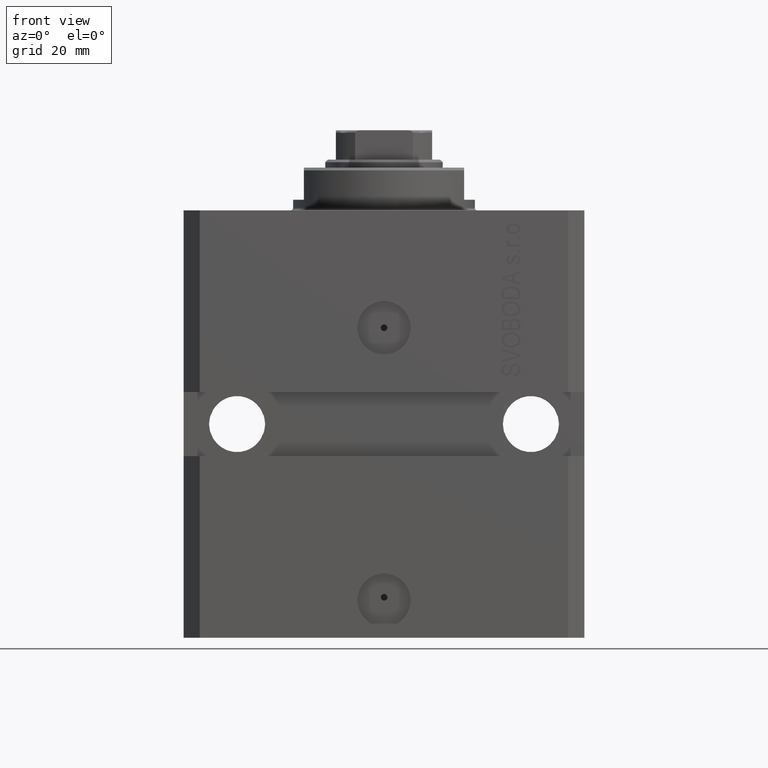
[diagram: clean part render]
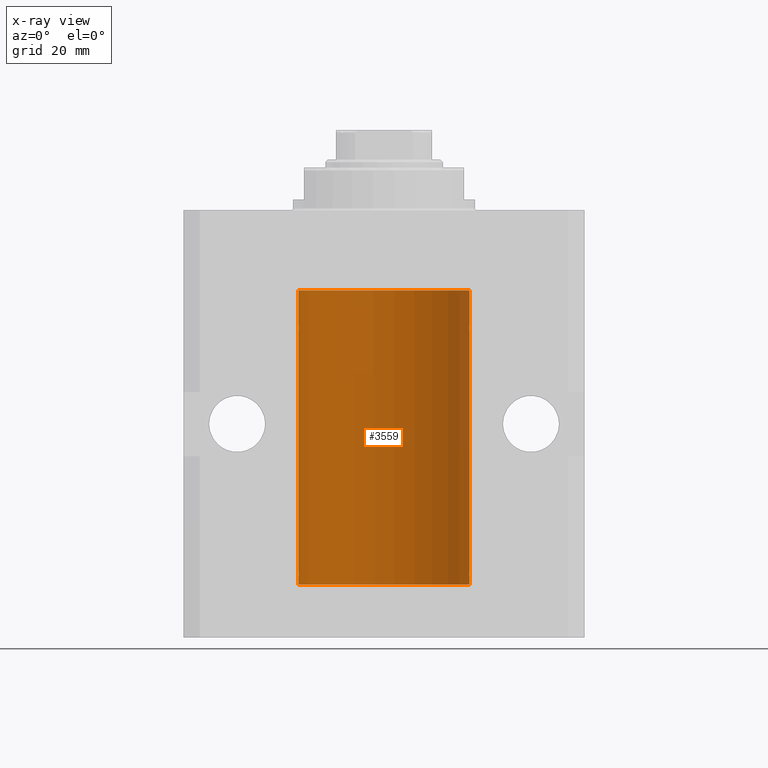
[diagram: x-ray — body ghosted, one internal face saturated and labeled with its STEP entity id]
A machine part, front view, then the same camera in x-ray: the body is ghosted and one INTERNAL B-rep face — a face not visible from any outside direction — is saturated and labeled: STEP entity #3559.
In plain terms, the highlighted cylindrical surface (partial cylindrical patch) has radius 16 mm, axis along (0, 0, 1).
Its self-contained STEP definition (entity closure, byte-faithful):
#27 = AXIS2_PLACEMENT_3D ( 'NONE', #22172, #18824, #29836 ) ;
#35 = CARTESIAN_POINT ( 'NONE',  ( 16.00000000000000000, 6.728408811789801767E-16, -22.62500000000000000 ) ) ;
#458 = VECTOR ( 'NONE', #21033, 1000.000000000000000 ) ;
#1012 = CARTESIAN_POINT ( 'NONE',  ( 15.98844460043491367, 0.6087869699337551399, -67.83657454967556077 ) ) ;
#1083 = CARTESIAN_POINT ( 'NONE',  ( -15.99707730059171240, 0.3150375992092407373, -21.45402333202571654 ) ) ;
#1338 = CARTESIAN_POINT ( 'NONE',  ( -16.00000000000013145, 3.685127034031037939E-13, -22.62500000000341771 ) ) ;
#1772 = CARTESIAN_POINT ( 'NONE',  ( -16.00000000000000000, 1.959434878635765131E-15, -15.00000000000000000 ) ) ;
#1907 = CARTESIAN_POINT ( 'NONE',  ( 16.00000000000000000, 0.000000000000000000, -70.09999999999999432 ) ) ;
#1979 = CARTESIAN_POINT ( 'NONE',  ( 16.00000000000000000, -1.835653844722709729E-15, -68.62500000000000000 ) ) ;
#2179 = CARTESIAN_POINT ( 'NONE',  ( 16.00000000000000000, 0.000000000000000000, -70.09999999999999432 ) ) ;
#3082 = EDGE_CURVE ( 'NONE', #11265, #18438, #5963, .T. ) ;
#3200 = EDGE_CURVE ( 'NONE', #22712, #16050, #6437, .T. ) ;
#3559 = ADVANCED_FACE ( 'NONE', ( #10668 ), #9736, .F. ) ;
#3612 = ORIENTED_EDGE ( 'NONE', *, *, #3082, .F. ) ;
#4569 = CARTESIAN_POINT ( 'NONE',  ( 15.99548458234361092, 0.3844468804815581731, -22.49947786696349894 ) ) ;
#4723 = VERTEX_POINT ( 'NONE', #46252 ) ;
#4835 = CARTESIAN_POINT ( 'NONE',  ( 15.98844460043492077, 0.6087869699336542206, -21.83657454967558564 ) ) ;
#5027 = ORIENTED_EDGE ( 'NONE', *, *, #32435, .T. ) ;
#5651 = B_SPLINE_CURVE_WITH_KNOTS ( 'NONE', 3,
 ( #44828, #8895, #1012, #37464, #23050, #27110, #41726, #23513 ),
 .UNSPECIFIED., .F., .F.,
 ( 4, 2, 2, 4 ),
 ( 0.0009773326288700682433, 0.001221554802188685399, 0.001465776975507302772, 0.001954221322144537518 ),
 .UNSPECIFIED. ) ;
#5963 = LINE ( 'NONE', #16503, #35688 ) ;
#6437 = LINE ( 'NONE', #32547, #458 ) ;
#6452 = EDGE_CURVE ( 'NONE', #28542, #12450, #26622, .T. ) ;
#6945 = B_SPLINE_CURVE_WITH_KNOTS ( 'NONE', 3,
 ( #22793, #12689, #4835, #37446, #19215, #45056, #15602, #26860 ),
 .UNSPECIFIED., .F., .F.,
 ( 4, 2, 2, 4 ),
 ( 0.0009773326288699728335, 0.001221554802188567438, 0.001465776975507162259, 0.001954221322144344530 ),
 .UNSPECIFIED. ) ;
#7369 = AXIS2_PLACEMENT_3D ( 'NONE', #18802, #36349, #26461 ) ;
#7675 = CIRCLE ( 'NONE', #27, 16.00000000000000000 ) ;
#8245 = CARTESIAN_POINT ( 'NONE',  ( -16.00000000000013145, 3.685127046438747128E-13, -68.62500000000343903 ) ) ;
#8587 = CARTESIAN_POINT ( 'NONE',  ( 16.00000000000000000, 0.000000000000000000, -15.00000000000000000 ) ) ;
#8716 = CARTESIAN_POINT ( 'NONE',  ( -15.98779057735153586, 0.6249419637998054888, -67.83670145863507628 ) ) ;
#8733 = CARTESIAN_POINT ( 'NONE',  ( -15.99070426498503217, 0.5462220647145618058, -22.31460064614143590 ) ) ;
#8895 = CARTESIAN_POINT ( 'NONE',  ( 15.98778830858103817, 0.6249999999997223332, -67.91847885046213662 ) ) ;
#9210 = CARTESIAN_POINT ( 'NONE',  ( -16.00000000000013145, 3.685127034031037939E-13, -22.62500000000341771 ) ) ;
#9502 = CARTESIAN_POINT ( 'NONE',  ( 16.00000000000013145, 3.665532692826917502E-13, -67.37499999999657518 ) ) ;
#9570 = VERTEX_POINT ( 'NONE', #25886 ) ;
#9736 = CYLINDRICAL_SURFACE ( 'NONE', #7369, 16.00000000000000000 ) ;
#9740 = AXIS2_PLACEMENT_3D ( 'NONE', #19546, #27671, #31025 ) ;
#10668 = FACE_OUTER_BOUND ( 'NONE', #36856, .T. ) ;
#11154 = CARTESIAN_POINT ( 'NONE',  ( -16.00000000000000000, 1.959434878635765131E-15, -70.09999999999999432 ) ) ;
#11265 = VERTEX_POINT ( 'NONE', #11154 ) ;
#12004 = CIRCLE ( 'NONE', #9740, 16.00000000000000000 ) ;
#12450 = VERTEX_POINT ( 'NONE', #1338 ) ;
#12689 = CARTESIAN_POINT ( 'NONE',  ( 15.98778830858104172, 0.6249999999996183053, -21.91847885046212951 ) ) ;
#12774 = CARTESIAN_POINT ( 'NONE',  ( -15.98779057735153941, 0.6249419637998100407, -21.83670145863507273 ) ) ;
#13021 = CARTESIAN_POINT ( 'NONE',  ( -16.00000000000000711, 0.08259886010189904093, -21.37500000000000000 ) ) ;
#13157 = DIRECTION ( 'NONE',  ( -0.000000000000000000, -0.000000000000000000, 1.000000000000000000 ) ) ;
#13708 = CARTESIAN_POINT ( 'NONE',  ( 16.00000000000001066, 0.08261762387943044628, -68.62500000000000000 ) ) ;
#14796 = ORIENTED_EDGE ( 'NONE', *, *, #41886, .F. ) ;
#15103 = ORIENTED_EDGE ( 'NONE', *, *, #28707, .T. ) ;
#15602 = CARTESIAN_POINT ( 'NONE',  ( 15.99999999999999289, 0.1631343969470015476, -21.37500000000020606 ) ) ;
#16050 = VERTEX_POINT ( 'NONE', #33176 ) ;
#16348 = ORIENTED_EDGE ( 'NONE', *, *, #25892, .T. ) ;
#16406 = CARTESIAN_POINT ( 'NONE',  ( -15.99934216141748244, 0.1636497843296417787, -21.39126528029306229 ) ) ;
#16503 = CARTESIAN_POINT ( 'NONE',  ( -16.00000000000000000, 1.959434878635765131E-15, -70.09999999999999432 ) ) ;
#16613 = CARTESIAN_POINT ( 'NONE',  ( 15.99934183755190986, 0.1636877470527013101, -68.60872690654070993 ) ) ;
#16808 = DIRECTION ( 'NONE',  ( -0.000000000000000000, -0.000000000000000000, 1.000000000000000000 ) ) ;
#17181 = CARTESIAN_POINT ( 'NONE',  ( -16.00000000000013145, 3.685127046438747128E-13, -68.62500000000343903 ) ) ;
#17908 = CARTESIAN_POINT ( 'NONE',  ( 15.98778830858070954, 0.6250000000079481977, -21.99999999999914735 ) ) ;
#17929 = LINE ( 'NONE', #42838, #30682 ) ;
#18312 = ORIENTED_EDGE ( 'NONE', *, *, #44503, .F. ) ;
#18438 = VERTEX_POINT ( 'NONE', #17181 ) ;
#18575 = CARTESIAN_POINT ( 'NONE',  ( -15.98778717651346426, 0.6250289588122136530, -68.08131585687053189 ) ) ;
#18800 = EDGE_CURVE ( 'NONE', #16050, #31187, #28459, .T. ) ;
#18802 = CARTESIAN_POINT ( 'NONE',  ( 0.000000000000000000, 0.000000000000000000, -70.09999999999999432 ) ) ;
#18824 = DIRECTION ( 'NONE',  ( 0.000000000000000000, 0.000000000000000000, 1.000000000000000000 ) ) ;
#18961 = ORIENTED_EDGE ( 'NONE', *, *, #19729, .T. ) ;
#19181 = CARTESIAN_POINT ( 'NONE',  ( 15.98778830858070954, 0.6250000000079481977, -21.99999999999914735 ) ) ;
#19215 = CARTESIAN_POINT ( 'NONE',  ( 15.99228275317787507, 0.5002975944204000047, -21.61642014570181303 ) ) ;
#19506 = CARTESIAN_POINT ( 'NONE',  ( -15.99707730059171240, 0.3150375992092334654, -67.45402333202571299 ) ) ;
#19546 = CARTESIAN_POINT ( 'NONE',  ( 0.000000000000000000, 0.000000000000000000, -15.00000000000000000 ) ) ;
#19729 = EDGE_CURVE ( 'NONE', #33905, #40116, #34523, .T. ) ;
#20900 = CARTESIAN_POINT ( 'NONE',  ( 15.98778830858070954, 0.6250000000080517815, -67.99999999999916156 ) ) ;
#21033 = DIRECTION ( 'NONE',  ( -0.000000000000000000, -0.000000000000000000, 1.000000000000000000 ) ) ;
#22009 = EDGE_CURVE ( 'NONE', #43150, #9570, #28035, .T. ) ;
#22172 = CARTESIAN_POINT ( 'NONE',  ( 0.000000000000000000, 0.000000000000000000, -70.09999999999999432 ) ) ;
#22381 = CARTESIAN_POINT ( 'NONE',  ( -15.99711699979840951, 0.3253759916140645525, -68.55856151623176231 ) ) ;
#22712 = VERTEX_POINT ( 'NONE', #9502 ) ;
#22793 = CARTESIAN_POINT ( 'NONE',  ( 15.98778830858070954, 0.6250000000079481977, -21.99999999999914735 ) ) ;
#23050 = CARTESIAN_POINT ( 'NONE',  ( 15.99228275317786441, 0.5002975944204781644, -67.61642014570176684 ) ) ;
#23208 = CARTESIAN_POINT ( 'NONE',  ( 16.00000000000013145, 3.665532684555111376E-13, -21.37499999999658229 ) ) ;
#23513 = CARTESIAN_POINT ( 'NONE',  ( 16.00000000000013145, 3.665532692826917502E-13, -67.37499999999657518 ) ) ;
#24937 = EDGE_CURVE ( 'NONE', #31187, #33905, #6945, .T. ) ;
#25886 = CARTESIAN_POINT ( 'NONE',  ( 16.00000000000000000, -1.835653844722709729E-15, -68.62500000000000000 ) ) ;
#25892 = EDGE_CURVE ( 'NONE', #4723, #18438, #43995, .T. ) ;
#25971 = CARTESIAN_POINT ( 'NONE',  ( -15.99548640841682712, 0.3843705577988820732, -67.50046628527007897 ) ) ;
#26329 = ORIENTED_EDGE ( 'NONE', *, *, #3200, .T. ) ;
#26461 = DIRECTION ( 'NONE',  ( 1.000000000000000000, 0.000000000000000000, 0.000000000000000000 ) ) ;
#26622 = B_SPLINE_CURVE_WITH_KNOTS ( 'NONE', 3,
 ( #30535, #13021, #16406, #1083, #42269, #41566, #12774, #45139, #27169, #8733, #33925, #41790, #44895, #9210 ),
 .UNSPECIFIED., .F., .F.,
 ( 4, 2, 2, 2, 2, 2, 4 ),
 ( 1.597328219370744179E-19, 0.0002442776652680942405, 0.0004885553305361882643, 0.0009771106610723839011, 0.001221388326340481665, 0.001465665991608579430, 0.001954221322144767369 ),
 .UNSPECIFIED. ) ;
#26860 = CARTESIAN_POINT ( 'NONE',  ( 16.00000000000013145, 3.665532684555111376E-13, -21.37499999999658229 ) ) ;
#27110 = CARTESIAN_POINT ( 'NONE',  ( 15.99711856062700477, 0.3252985083514284281, -67.44140297987711108 ) ) ;
#27169 = CARTESIAN_POINT ( 'NONE',  ( -15.98844267028591482, 0.6088369347963316081, -22.16324735024328518 ) ) ;
#27671 = DIRECTION ( 'NONE',  ( 0.000000000000000000, 0.000000000000000000, 1.000000000000000000 ) ) ;
#27969 = DIRECTION ( 'NONE',  ( -0.000000000000000000, -0.000000000000000000, 1.000000000000000000 ) ) ;
#28035 = LINE ( 'NONE', #2179, #29280 ) ;
#28093 = CARTESIAN_POINT ( 'NONE',  ( -16.00000000000000000, 1.959434878635765131E-15, -70.09999999999999432 ) ) ;
#28459 = B_SPLINE_CURVE_WITH_KNOTS ( 'NONE', 3,
 ( #35, #44077, #33318, #32841, #4569, #29472, #37419, #19181 ),
 .UNSPECIFIED., .F., .F.,
 ( 4, 2, 2, 4 ),
 ( 6.538667818360814107E-19, 0.0002443331572174917989, 0.0004886663144349829473, 0.0009773326288699728335 ),
 .UNSPECIFIED. ) ;
#28542 = VERTEX_POINT ( 'NONE', #33707 ) ;
#28707 = EDGE_CURVE ( 'NONE', #40116, #44947, #12004, .T. ) ;
#29280 = VECTOR ( 'NONE', #16808, 1000.000000000000000 ) ;
#29472 = CARTESIAN_POINT ( 'NONE',  ( 15.99070366873610993, 0.5574063959866685236, -22.32639436837549951 ) ) ;
#29654 = ORIENTED_EDGE ( 'NONE', *, *, #18800, .T. ) ;
#29805 = CARTESIAN_POINT ( 'NONE',  ( -15.99070426498502862, 0.5462220647145645813, -68.31460064614141459 ) ) ;
#29836 = DIRECTION ( 'NONE',  ( 1.000000000000000000, 0.000000000000000000, 0.000000000000000000 ) ) ;
#30535 = CARTESIAN_POINT ( 'NONE',  ( -16.00000000000000000, 1.643679961284177128E-16, -21.37499999999999645 ) ) ;
#30682 = VECTOR ( 'NONE', #27969, 1000.000000000000000 ) ;
#31025 = DIRECTION ( 'NONE',  ( 1.000000000000000000, 0.000000000000000000, 0.000000000000000000 ) ) ;
#31187 = VERTEX_POINT ( 'NONE', #17908 ) ;
#31214 = CARTESIAN_POINT ( 'NONE',  ( 15.99707608081895138, 0.3151028052310259620, -68.54594170697733091 ) ) ;
#31941 = CARTESIAN_POINT ( 'NONE',  ( 15.98778830858101685, 0.6250000000002223777, -68.16311639173024162 ) ) ;
#32435 = EDGE_CURVE ( 'NONE', #9570, #39530, #45052, .T. ) ;
#32547 = CARTESIAN_POINT ( 'NONE',  ( 16.00000000000000000, 0.000000000000000000, -70.09999999999999432 ) ) ;
#32841 = CARTESIAN_POINT ( 'NONE',  ( 15.99707608081894783, 0.3151028052309810534, -22.54594170697727762 ) ) ;
#33176 = CARTESIAN_POINT ( 'NONE',  ( 16.00000000000000000, 6.728408811789801767E-16, -22.62500000000000000 ) ) ;
#33318 = CARTESIAN_POINT ( 'NONE',  ( 15.99934183755190986, 0.1636877470526783007, -22.60872690654068151 ) ) ;
#33419 = CARTESIAN_POINT ( 'NONE',  ( -15.99228023727723702, 0.5003781296993395911, -68.38347829554236057 ) ) ;
#33659 = CARTESIAN_POINT ( 'NONE',  ( -16.00000000000000000, -9.346608026143465119E-15, -67.37500000000000000 ) ) ;
#33707 = CARTESIAN_POINT ( 'NONE',  ( -16.00000000000000000, 1.643679961284177128E-16, -21.37499999999999645 ) ) ;
#33905 = VERTEX_POINT ( 'NONE', #23208 ) ;
#33925 = CARTESIAN_POINT ( 'NONE',  ( -15.99228023727724413, 0.5003781296993413674, -22.38347829554236057 ) ) ;
#34130 = CARTESIAN_POINT ( 'NONE',  ( -16.00000000000000711, 0.08259886010189028405, -67.37500000000001421 ) ) ;
#34254 = ORIENTED_EDGE ( 'NONE', *, *, #24937, .T. ) ;
#34523 = LINE ( 'NONE', #1907, #42218 ) ;
#34563 = CARTESIAN_POINT ( 'NONE',  ( 16.00000000000000000, 0.000000000000000000, -70.09999999999999432 ) ) ;
#34594 = CARTESIAN_POINT ( 'NONE',  ( 15.98778830858070954, 0.6250000000080517815, -67.99999999999916156 ) ) ;
#35333 = DIRECTION ( 'NONE',  ( -0.000000000000000000, -0.000000000000000000, 1.000000000000000000 ) ) ;
#35688 = VECTOR ( 'NONE', #45946, 1000.000000000000000 ) ;
#36349 = DIRECTION ( 'NONE',  ( -0.000000000000000000, -0.000000000000000000, 1.000000000000000000 ) ) ;
#36780 = ORIENTED_EDGE ( 'NONE', *, *, #38470, .F. ) ;
#36793 = CARTESIAN_POINT ( 'NONE',  ( -15.98844267028591126, 0.6088369347963314970, -68.16324735024328163 ) ) ;
#36856 = EDGE_LOOP ( 'NONE', ( #3612, #36780, #44737, #5027, #41356, #26329, #29654, #34254, #18961, #15103, #18312, #43559, #14796, #16348 ) ) ;
#37038 = CARTESIAN_POINT ( 'NONE',  ( -15.99999999999998934, 0.1631714642025807183, -68.62499999999984368 ) ) ;
#37419 = CARTESIAN_POINT ( 'NONE',  ( 15.98778830858101685, 0.6250000000001204592, -22.16311639173018833 ) ) ;
#37446 = CARTESIAN_POINT ( 'NONE',  ( 15.99070695999104252, 0.5461439696926363441, -21.68526802364053552 ) ) ;
#37464 = CARTESIAN_POINT ( 'NONE',  ( 15.99070695999103542, 0.5461439696927204990, -67.68526802364047512 ) ) ;
#38470 = EDGE_CURVE ( 'NONE', #43150, #11265, #7675, .T. ) ;
#38917 = CARTESIAN_POINT ( 'NONE',  ( 15.99070366873610283, 0.5574063959867601170, -68.32639436837555991 ) ) ;
#39530 = VERTEX_POINT ( 'NONE', #34594 ) ;
#39628 = LINE ( 'NONE', #28093, #45136 ) ;
#40116 = VERTEX_POINT ( 'NONE', #8587 ) ;
#40605 = CARTESIAN_POINT ( 'NONE',  ( -15.99070653155268040, 0.5573233280232966491, -67.67348148680505915 ) ) ;
#41074 = CARTESIAN_POINT ( 'NONE',  ( -15.99934216141748244, 0.1636497843296345067, -67.39126528029308361 ) ) ;
#41356 = ORIENTED_EDGE ( 'NONE', *, *, #45299, .T. ) ;
#41566 = CARTESIAN_POINT ( 'NONE',  ( -15.99070653155267685, 0.5573233280232986475, -21.67348148680506625 ) ) ;
#41726 = CARTESIAN_POINT ( 'NONE',  ( 15.99999999999999645, 0.1631343969470158417, -67.37500000000021316 ) ) ;
#41790 = CARTESIAN_POINT ( 'NONE',  ( -15.99711699979842017, 0.3253759916140657737, -22.55856151623175521 ) ) ;
#41886 = EDGE_CURVE ( 'NONE', #4723, #12450, #39628, .T. ) ;
#42218 = VECTOR ( 'NONE', #13157, 1000.000000000000000 ) ;
#42269 = CARTESIAN_POINT ( 'NONE',  ( -15.99548640841683067, 0.3843705577988847377, -21.50046628527008608 ) ) ;
#42474 = CARTESIAN_POINT ( 'NONE',  ( 15.99548458234361448, 0.3844468804816183471, -68.49947786696357355 ) ) ;
#42838 = CARTESIAN_POINT ( 'NONE',  ( -16.00000000000000000, 1.959434878635765131E-15, -70.09999999999999432 ) ) ;
#43150 = VERTEX_POINT ( 'NONE', #34563 ) ;
#43559 = ORIENTED_EDGE ( 'NONE', *, *, #6452, .T. ) ;
#43995 = B_SPLINE_CURVE_WITH_KNOTS ( 'NONE', 3,
 ( #33659, #34130, #41074, #19506, #25971, #40605, #8716, #18575, #36793, #29805, #33419, #22381, #37038, #8245 ),
 .UNSPECIFIED., .F., .F.,
 ( 4, 2, 2, 2, 2, 2, 4 ),
 ( 9.902737362640428303E-19, 0.0002442776652680895785, 0.0004885553305361781812, 0.0009771106610723552782, 0.001221388326340464752, 0.001465665991608574008, 0.001954221322144763465 ),
 .UNSPECIFIED. ) ;
#44077 = CARTESIAN_POINT ( 'NONE',  ( 16.00000000000000711, 0.08261762387942241104, -22.62499999999997158 ) ) ;
#44503 = EDGE_CURVE ( 'NONE', #28542, #44947, #17929, .T. ) ;
#44737 = ORIENTED_EDGE ( 'NONE', *, *, #22009, .T. ) ;
#44828 = CARTESIAN_POINT ( 'NONE',  ( 15.98778830858070954, 0.6250000000080517815, -67.99999999999916156 ) ) ;
#44895 = CARTESIAN_POINT ( 'NONE',  ( -16.00000000000000000, 0.1631714642025800244, -22.62499999999985789 ) ) ;
#44947 = VERTEX_POINT ( 'NONE', #1772 ) ;
#45052 = B_SPLINE_CURVE_WITH_KNOTS ( 'NONE', 3,
 ( #1979, #13708, #16613, #31214, #42474, #38917, #31941, #20900 ),
 .UNSPECIFIED., .F., .F.,
 ( 4, 2, 2, 4 ),
 ( 1.783888443149829469E-18, 0.0002443331572175257886, 0.0004886663144350497342, 0.0009773326288700682433 ),
 .UNSPECIFIED. ) ;
#45056 = CARTESIAN_POINT ( 'NONE',  ( 15.99711856062700122, 0.3252985083513915687, -21.44140297987714661 ) ) ;
#45136 = VECTOR ( 'NONE', #35333, 1000.000000000000000 ) ;
#45139 = CARTESIAN_POINT ( 'NONE',  ( -15.98778717651346071, 0.6250289588122140971, -22.08131585687052478 ) ) ;
#45299 = EDGE_CURVE ( 'NONE', #39530, #22712, #5651, .T. ) ;
#45946 = DIRECTION ( 'NONE',  ( -0.000000000000000000, -0.000000000000000000, 1.000000000000000000 ) ) ;
#46252 = CARTESIAN_POINT ( 'NONE',  ( -16.00000000000000000, -9.346608026143465119E-15, -67.37500000000000000 ) ) ;